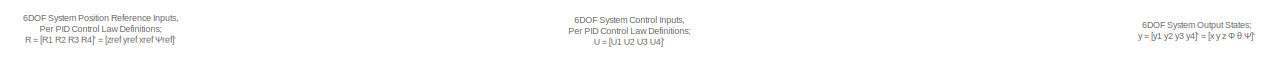
[diagram: root canvas - part 1/4, top center region]
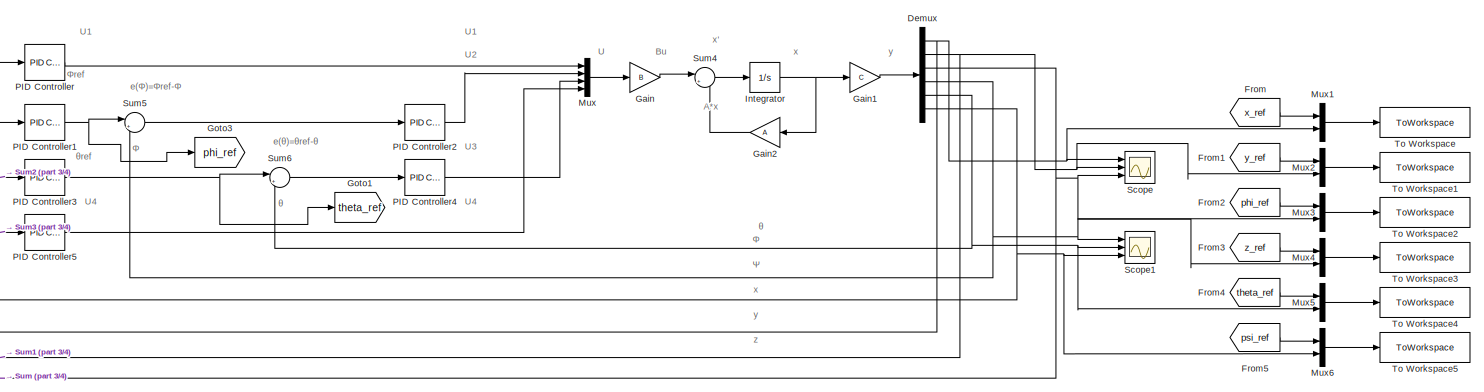
[diagram: root canvas - part 2/4, full width, middle band]
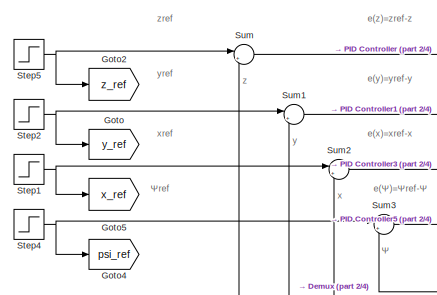
[diagram: root canvas - part 3/4, middle left region]
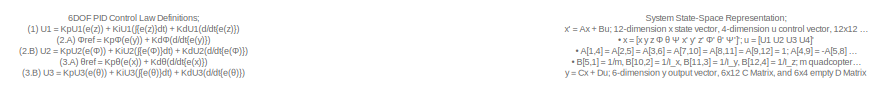
[diagram: root canvas - part 4/4, bottom left region]
MODEL slx_68973772b6f9
KIND model
CONFIG AbsTol = auto
CONFIG EnableMultiTasking = off
CONFIG FixedStep = auto
CONFIG MaxStep = auto
CONFIG MinStep = auto
CONFIG RelTol = 1e-3
CONFIG SampleTimeConstraint = Unconstrained
CONFIG SolverName = VariableStepAuto
CONFIG StartTime = 0.0
CONFIG StopTime = 10.0
BLOCK [Demux] Demux
  Outputs = 6
  Ports = [1, 6]
BLOCK [From] From
  GotoTag = x_ref
BLOCK [From] From1
  GotoTag = y_ref
BLOCK [From] From2
  GotoTag = phi_ref
BLOCK [From] From3
  GotoTag = z_ref
BLOCK [From] From4
  GotoTag = theta_ref
BLOCK [From] From5
  GotoTag = psi_ref
BLOCK [Gain] Gain
  AttributesFormatString = State-Space B*u
  Gain = B
  Multiplication = Matrix(K*u)
BLOCK [Gain] Gain1
  AttributesFormatString = State-Space C*x
  Gain = C
  Multiplication = Matrix(K*u)
BLOCK [Gain] Gain2
  AttributesFormatString = State-Space A*x
  Gain = A
  Multiplication = Matrix(K*u)
BLOCK [Goto] Goto
  GotoTag = y_ref
BLOCK [Goto] Goto1
  GotoTag = theta_ref
BLOCK [Goto] Goto2
  GotoTag = z_ref
BLOCK [Goto] Goto3
  GotoTag = phi_ref
BLOCK [Goto] Goto4
  GotoTag = psi_ref
BLOCK [Goto] Goto5
  GotoTag = x_ref
BLOCK [Integrator] Integrator
  AttributesFormatString = Extract Current States
  Ports = [1, 1]
BLOCK [Mux] Mux
  DisplayOption = bar
  Ports = [4, 1]
BLOCK [Mux] Mux1
  DisplayOption = bar
  Inputs = 2
  Ports = [2, 1]
BLOCK [Mux] Mux2
  DisplayOption = bar
  Inputs = 2
  Ports = [2, 1]
BLOCK [Mux] Mux3
  DisplayOption = bar
  Inputs = 2
  Ports = [2, 1]
BLOCK [Mux] Mux4
  DisplayOption = bar
  Inputs = 2
  Ports = [2, 1]
BLOCK [Mux] Mux5
  DisplayOption = bar
  Inputs = 2
  Ports = [2, 1]
BLOCK [Mux] Mux6
  DisplayOption = bar
  Inputs = 2
  Ports = [2, 1]
BLOCK [Reference] PID Controller  REF=slpidlib/PID Controller
  AttributesFormatString = U1 Controller
  Ports = [1, 1]
  SourceBlock = slpidlib/PID Controller
  SourceProductBaseCode = SL
  SourceType = PID 1dof
BLOCK [Reference] PID Controller1  REF=slpidlib/PID Controller
  AttributesFormatString = Φref Generation
  Ports = [1, 1]
  SourceBlock = slpidlib/PID Controller
  SourceProductBaseCode = SL
  SourceType = PID 1dof
BLOCK [Reference] PID Controller2  REF=slpidlib/PID Controller
  AttributesFormatString = U2 Controller
  Ports = [1, 1]
  SourceBlock = slpidlib/PID Controller
  SourceProductBaseCode = SL
  SourceType = PID 1dof
BLOCK [Reference] PID Controller3  REF=slpidlib/PID Controller
  AttributesFormatString = θref Generation
  Ports = [1, 1]
  SourceBlock = slpidlib/PID Controller
  SourceProductBaseCode = SL
  SourceType = PID 1dof
BLOCK [Reference] PID Controller4  REF=slpidlib/PID Controller
  AttributesFormatString = U3 Controller
  Ports = [1, 1]
  SourceBlock = slpidlib/PID Controller
  SourceProductBaseCode = SL
  SourceType = PID 1dof
BLOCK [Reference] PID Controller5  REF=slpidlib/PID Controller
  AttributesFormatString = U4 Controller
  Ports = [1, 1]
  SourceBlock = slpidlib/PID Controller
  SourceProductBaseCode = SL
  SourceType = PID 1dof
BLOCK [Scope] Scope
  AttributesFormatString = Quadcopter Position\nOutputs
  Floating = off
  NumInputPorts = 3
  Ports = [3]
  ScopeSpecificationString = Simulink.scopes.TimeScopeBlockCfg('CurrentConfiguration', extmgr.ConfigurationSet(extmgr.Configuration('Core','General UI',true),extmgr.Configuration('Core','Source UI',true),extmgr.Configuration('Sources','WiredSimulink',true,'DataLoggingVariableName','ScopeData1'),extmgr.Configuration('Visuals','Time Domain',true,'SerializedDisplays',{struct('MinYLimReal','-1.48846','MaxYLimReal','1.943','YLabel...<+1910ch>
BLOCK [Scope] Scope1
  AttributesFormatString = Quadcopter Euler Angle\nOutputs
  Floating = off
  NumInputPorts = 3
  Ports = [3]
  ScopeSpecificationString = Simulink.scopes.TimeScopeBlockCfg('CurrentConfiguration', extmgr.ConfigurationSet(extmgr.Configuration('Core','General UI',true),extmgr.Configuration('Core','Source UI',true),extmgr.Configuration('Sources','WiredSimulink',true),extmgr.Configuration('Visuals','Time Domain',true,'SerializedDisplays',{struct('MinYLimReal','-2927477029.64445','MaxYLimReal','12430482701.53068','YLabelReal','','MinYLimM...<+1910ch>
BLOCK [Step] Step1
  SampleTime = 0
BLOCK [Step] Step2
  SampleTime = 0
BLOCK [Step] Step4
  SampleTime = 0
BLOCK [Step] Step5
  SampleTime = 0
BLOCK [Sum] Sum
  Inputs = |+-
  Ports = [2, 1]
BLOCK [Sum] Sum1
  Inputs = |+-
  Ports = [2, 1]
BLOCK [Sum] Sum2
  Inputs = |++
  Ports = [2, 1]
BLOCK [Sum] Sum3
  Inputs = |+-
  Ports = [2, 1]
BLOCK [Sum] Sum4
  Inputs = |++
  Ports = [2, 1]
BLOCK [Sum] Sum5
  Inputs = |+-
  Ports = [2, 1]
BLOCK [Sum] Sum6
  Inputs = |+-
  Ports = [2, 1]
BLOCK [ToWorkspace] To Workspace
  FixptAsFi = on
  MaxDataPoints = inf
  Ports = [1]
  SampleTime = -1
  SaveFormat = Timeseries
  VariableName = x_err
BLOCK [ToWorkspace] To Workspace1
  FixptAsFi = on
  MaxDataPoints = inf
  Ports = [1]
  SampleTime = -1
  SaveFormat = Timeseries
  VariableName = y_err
BLOCK [ToWorkspace] To Workspace2
  FixptAsFi = on
  MaxDataPoints = inf
  Ports = [1]
  SampleTime = -1
  SaveFormat = Timeseries
  VariableName = phi_err
BLOCK [ToWorkspace] To Workspace3
  FixptAsFi = on
  MaxDataPoints = inf
  Ports = [1]
  SampleTime = -1
  SaveFormat = Timeseries
  VariableName = z_err
BLOCK [ToWorkspace] To Workspace4
  FixptAsFi = on
  MaxDataPoints = inf
  Ports = [1]
  SampleTime = -1
  SaveFormat = Timeseries
  VariableName = theta_err
BLOCK [ToWorkspace] To Workspace5
  FixptAsFi = on
  MaxDataPoints = inf
  Ports = [1]
  SampleTime = -1
  SaveFormat = Timeseries
  VariableName = psi_err
ANNOTATION (root): Ψ
ANNOTATION (root): Ψ ref
ANNOTATION (root): U 4
ANNOTATION (root): x
ANNOTATION (root): y
ANNOTATION (root): z
ANNOTATION (root): Φ
ANNOTATION (root): Φ ref
ANNOTATION (root): θ
ANNOTATION (root): θ ref
ANNOTATION (root): 6DOF PID Control Law Definitions; (1) U 1 = K pU1 ( e(z) ) + K iU1 ( ∫{ e(z) }dt) + K dU1 (d/dt{ e(z) }) (2.A) Φ ref = K pΦ ( e(y) ) + K dΦ (d/dt{ e(y) }) (2.B) U 2 = K pU2 ( e(Φ) ) + K iU2 ( ∫{ e(Φ) }dt) + K dU2 (d/dt{ e(Φ) }) (3.A) θ ref = K pθ ( e(x) ) + K dθ (d/dt{ e(x) }) (3.B) U 3 = K pU3 ( e(θ) ) + K iU3 ( ∫{ e(θ) }dt) + K dU3 (d/dt{ e(θ) }) (4) U 4 = K pU4 ( e( Ψ ) ) + K iU4 ( ∫{ e( Ψ ) }d...<+27ch>
ANNOTATION (root): 6DOF System Control Inputs, Per PID Control Law Definitions; U = [ U 1 U 2 U 3 U 4 ]'
ANNOTATION (root): 6DOF System Output States; y = [y 1 y 2 y 3 y 4 ]' = [ x y z Φ θ Ψ ]'
ANNOTATION (root): 6DOF System Position Reference Inputs, Per PID Control Law Definitions; R = [R 1 R 2 R 3 R 4 ]' = [ z ref y ref x ref Ψ ref ]'
ANNOTATION (root): System State-Space Representation; x' = Ax + Bu; 12-dimension x state vector, 4-dimension u control vector, 12x12 A Matrix, and 12x4 B Matrix • x = [ x y z Φ θ Ψ x' y' z' Φ' θ' Ψ' ]'; u = [ U 1 U 2 U 3 U 4 ]' • A[1,4] = A[2,5] = A[3,6] = A[7,10] = A[8,11] = A[9,12] = 1; A[4,9] = -A[5,8] = g (earth gravity acceleration constant.) • B[5,1] = 1/m, B[10,2] = 1/I_x, B[11,3] = 1/I_y, B[12,4] = 1/I_z; m ...<+288ch>
ANNOTATION (root): A*x
ANNOTATION (root): Bu
ANNOTATION (root): U
ANNOTATION (root): U 1
ANNOTATION (root): U 2
ANNOTATION (root): U 3
ANNOTATION (root): e( Ψ )= Ψ ref - Ψ
ANNOTATION (root): e( Φ )= Φ ref - Φ
ANNOTATION (root): e( θ )= θ ref - θ
ANNOTATION (root): e(x)=x ref -x
ANNOTATION (root): e(y)=y ref -y
ANNOTATION (root): e(z)=z ref -z
ANNOTATION (root): x'
ANNOTATION (root): x ref
ANNOTATION (root): y ref
ANNOTATION (root): z ref
NET Demux:1 -> Mux1:2, Scope:1, Sum2:2
NET Demux:2 -> Mux2:2, Scope:2, Sum1:2
NET Demux:3 -> Mux4:2, Scope:3, Sum:2
NET Demux:4 -> Mux3:2, Scope1:1, Sum5:2
NET Demux:5 -> Mux5:2, Scope1:2, Sum6:2
NET Demux:6 -> Mux6:2, Scope1:3, Sum3:2
LINE From1:1 -> Mux2:1
LINE From2:1 -> Mux3:1
LINE From3:1 -> Mux4:1
LINE From4:1 -> Mux5:1
LINE From5:1 -> Mux6:1
LINE From:1 -> Mux1:1
LINE Gain1:1 -> Demux:1
LINE Gain2:1 -> Sum4:2
LINE Gain:1 -> Sum4:1
NET Integrator:1 -> Gain1:1, Gain2:1
LINE Mux1:1 -> To Workspace:1
LINE Mux2:1 -> To Workspace1:1
LINE Mux3:1 -> To Workspace2:1
LINE Mux4:1 -> To Workspace3:1
LINE Mux5:1 -> To Workspace4:1
LINE Mux6:1 -> To Workspace5:1
LINE Mux:1 -> Gain:1
NET PID Controller1:1 -> Goto3:1, Sum5:1
LINE PID Controller2:1 -> Mux:2
NET PID Controller3:1 -> Goto1:1, Sum6:1
LINE PID Controller4:1 -> Mux:3
LINE PID Controller5:1 -> Mux:4
LINE PID Controller:1 -> Mux:1
NET Step1:1 -> Goto5:1, Sum2:1
NET Step2:1 -> Goto:1, Sum1:1
NET Step4:1 -> Goto4:1, Sum3:1
NET Step5:1 -> Goto2:1, Sum:1
LINE Sum1:1 -> PID Controller1:1
LINE Sum2:1 -> PID Controller3:1
LINE Sum3:1 -> PID Controller5:1
LINE Sum4:1 -> Integrator:1
LINE Sum5:1 -> PID Controller2:1
LINE Sum6:1 -> PID Controller4:1
LINE Sum:1 -> PID Controller:1
note: NET lines group one-source signal fan-out (src -> all destinations, sorted); 1:1 wires keep LINE
